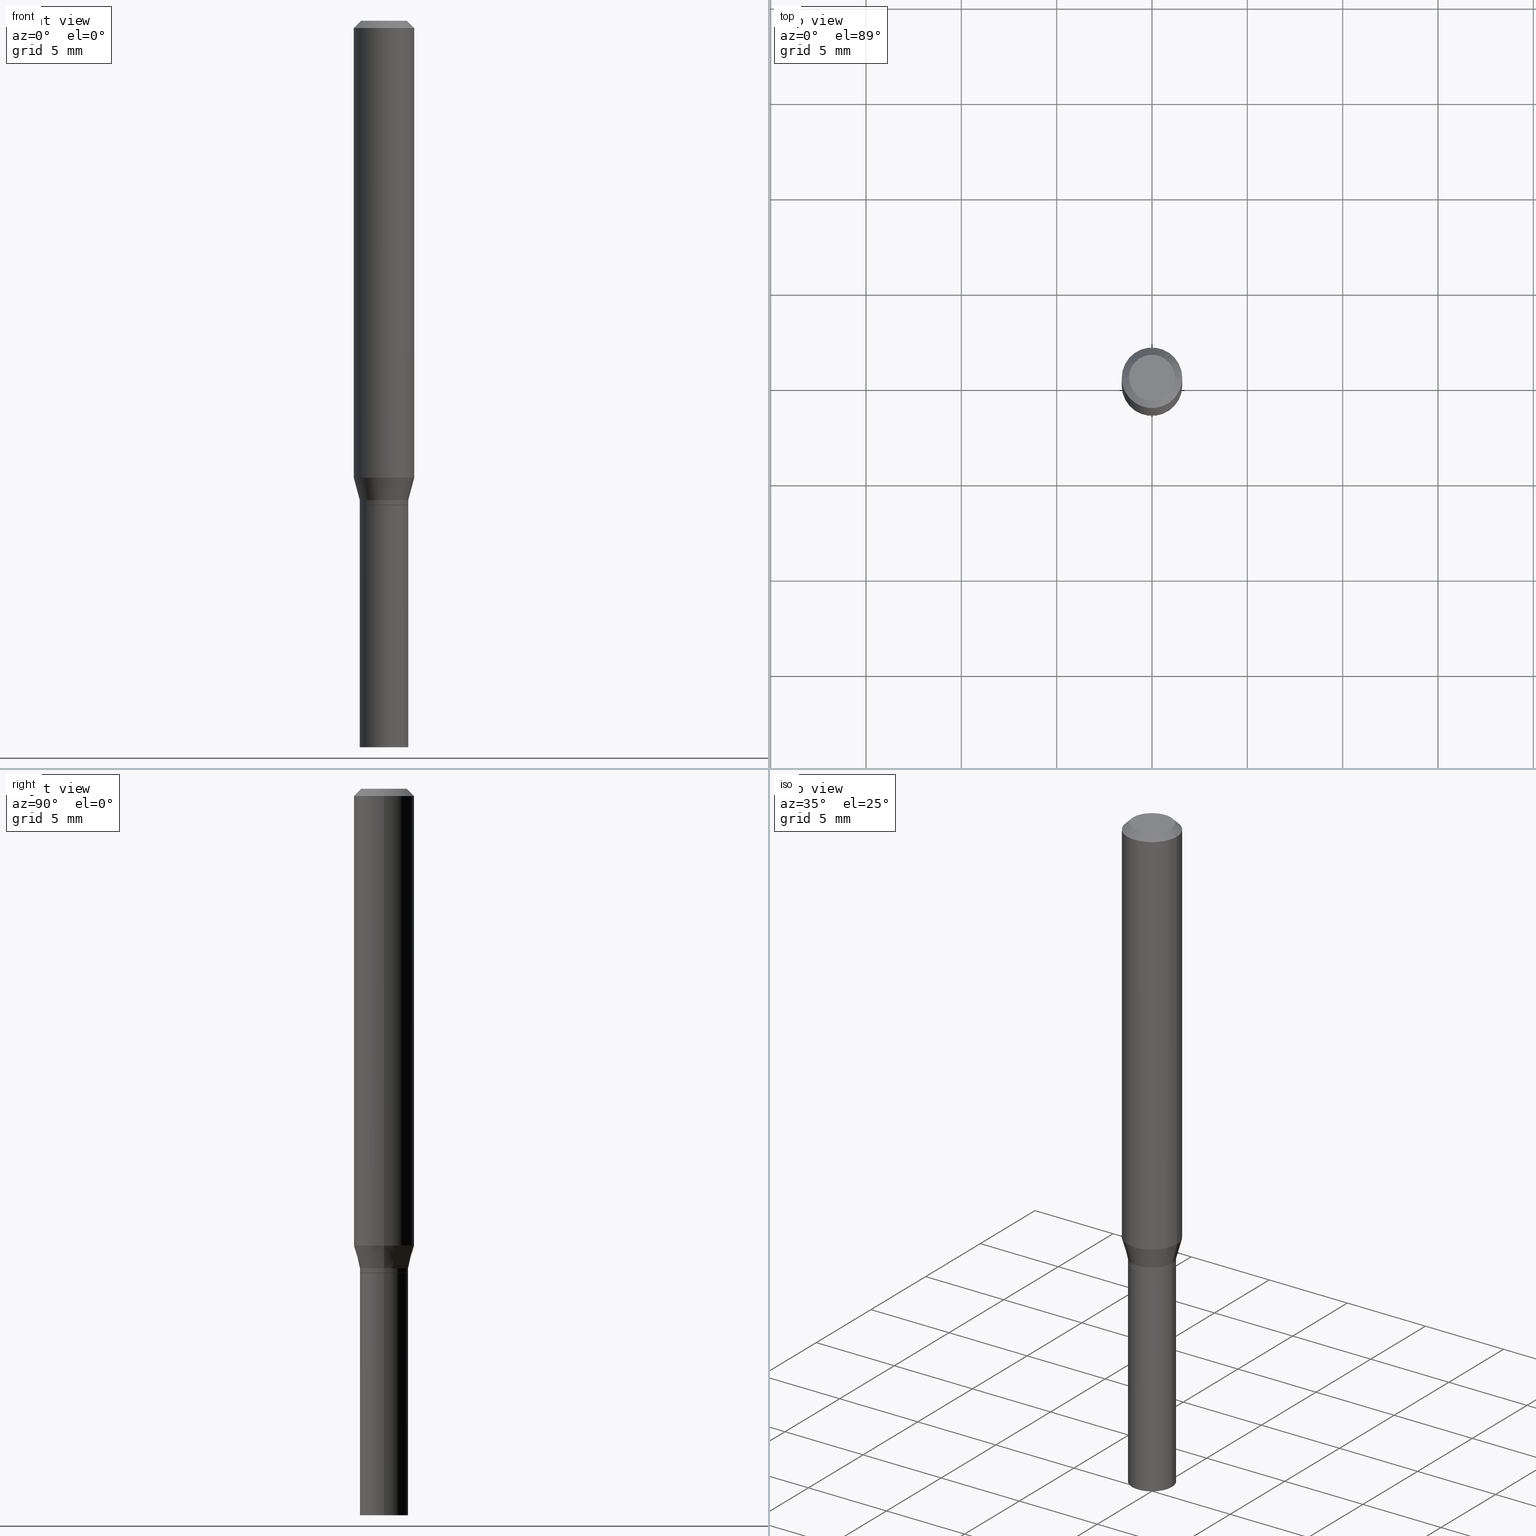
[diagram: canonical four-view strip — front | top / right | iso, engineering-drawing reading convention]
A machine part, canonical four-view strip (front | top / right | iso — engineering-drawing reading convention). The complete STEP part file that produces these views, byte-faithful:
ISO-10303-21;
HEADER;
FILE_DESCRIPTION (( 'STEP AP203' ),
    '1' );
FILE_NAME ('02663.STEP',
    '2024-03-18T21:11:18',
    ( '' ),
    ( '' ),
    'SwSTEP 2.0',
    'SolidWorks 2023',
    '' );
FILE_SCHEMA (( 'CONFIG_CONTROL_DESIGN' ));
ENDSEC;

DATA;
#1 = ADVANCED_FACE ( 'NONE', ( #44 ), #55, .F. ) ;
#2 = ORIENTED_EDGE ( 'NONE', *, *, #360, .F. ) ;
#3 = DIRECTION ( 'NONE',  ( -2.445468806185136597E-29, 3.491481338843145583E-15, 1.000000000000000000 ) ) ;
#4 = FACE_OUTER_BOUND ( 'NONE', #430, .T. ) ;
#5 = CARTESIAN_POINT ( 'NONE',  ( -0.04749999999999999362, 3.578768372314211985E-16, 8.618106228653636715E-17 ) ) ;
#6 = ADVANCED_FACE ( 'NONE', ( #466 ), #49, .T. ) ;
#7 = ORIENTED_EDGE ( 'NONE', *, *, #316, .F. ) ;
#8 = ORIENTED_EDGE ( 'NONE', *, *, #178, .T. ) ;
#9 = VECTOR ( 'NONE', #407, 39.37007874015748854 ) ;
#10 = PERSON_AND_ORGANIZATION ( #325, #126 ) ;
#11 = CARTESIAN_POINT ( 'NONE',  ( -0.05000000000000006523, -3.101295157574663525E-15, -0.9900000000000001021 ) ) ;
#12 = COORDINATED_UNIVERSAL_TIME_OFFSET ( 5, 0, .BEHIND. ) ;
#13 = PERSON_AND_ORGANIZATION_ROLE ( 'classification_officer' ) ;
#14 = AXIS2_PLACEMENT_3D ( 'NONE', #424, #246, #382 ) ;
#15 = CARTESIAN_POINT ( 'NONE',  ( 0.06250000000000000000, -4.888073874380388472E-16, -0.01499999999999999944 ) ) ;
#16 = FACE_OUTER_BOUND ( 'NONE', #65, .T. ) ;
#17 = EDGE_LOOP ( 'NONE', ( #24, #102, #369, #82 ) ) ;
#18 = DIRECTION ( 'NONE',  ( 1.000000000000000000, -6.982962677686265133E-15, 0.000000000000000000 ) ) ;
#19 = CARTESIAN_POINT ( 'NONE',  ( 0.05000000000000006523, -3.805714659339028452E-15, -0.9900000000000001021 ) ) ;
#20 = ORIENTED_EDGE ( 'NONE', *, *, #425, .T. ) ;
#21 = AXIS2_PLACEMENT_3D ( 'NONE', #34, #3, #441 ) ;
#22 = AXIS2_PLACEMENT_3D ( 'NONE', #26, #464, #147 ) ;
#23 = DIRECTION ( 'NONE',  ( 2.445468806185136597E-29, -3.491481338843145583E-15, -1.000000000000000000 ) ) ;
#24 = ORIENTED_EDGE ( 'NONE', *, *, #198, .F. ) ;
#25 = CARTESIAN_POINT ( 'NONE',  ( 2.444246071782044356E-29, -3.489735598173724079E-15, -0.9995000000000000551 ) ) ;
#26 = CARTESIAN_POINT ( 'NONE',  ( 3.668203209277705088E-31, -5.237222008264718399E-17, -0.01499999999999999944 ) ) ;
#27 = DIRECTION ( 'NONE',  ( 1.000000000000000000, -6.982962677686265133E-15, 0.000000000000000000 ) ) ;
#28 = DIRECTION ( 'NONE',  ( 1.000000000000000000, -6.982962677686267499E-15, 4.876176775795936353E-29 ) ) ;
#29 = ADVANCED_FACE ( 'NONE', ( #122 ), #379, .T. ) ;
#30 = CIRCLE ( 'NONE', #114, 0.05000000000000006523 ) ;
#31 = DIRECTION ( 'NONE',  ( -1.000000000000000000, 6.982962677686266711E-15, 0.000000000000000000 ) ) ;
#32 = CARTESIAN_POINT ( 'NONE',  ( 0.05000000000000000278, -5.586370142149032301E-15, -1.500000000000000222 ) ) ;
#33 = CARTESIAN_POINT ( 'NONE',  ( 0.05000000000000000278, -3.840629472727459313E-15, -1.000000000000000222 ) ) ;
#34 = CARTESIAN_POINT ( 'NONE',  ( 2.445468806185136877E-29, -3.491481338843145977E-15, -1.000000000000000222 ) ) ;
#35 = EDGE_CURVE ( 'NONE', #201, #61, #357, .T. ) ;
#36 = ADVANCED_BREP_SHAPE_REPRESENTATION ( '02663', ( #317, #286, #175 ), #67 ) ;
#37 = CLOSED_SHELL ( 'NONE', ( #442, #338, #344, #372, #416, #436, #78, #6, #84, #244, #29, #328 ) ) ;
#38 = CARTESIAN_POINT ( 'NONE',  ( 0.04950000000000000233, -3.837137991388616305E-15, -1.000000000000000222 ) ) ;
#39 = CIRCLE ( 'NONE', #358, 0.06250000000000000000 ) ;
#40 = APPROVAL_PERSON_ORGANIZATION ( #366, #290, #169 ) ;
#41 = DIRECTION ( 'NONE',  ( -2.445468806185136597E-29, 3.491481338843145583E-15, 1.000000000000000000 ) ) ;
#42 = APPROVAL_STATUS ( 'not_yet_approved' ) ;
#43 = PLANE ( 'NONE',  #315 ) ;
#44 = FACE_OUTER_BOUND ( 'NONE', #238, .T. ) ;
#45 = VERTEX_POINT ( 'NONE', #5 ) ;
#46 = EDGE_CURVE ( 'NONE', #351, #363, #187, .T. ) ;
#47 = VERTEX_POINT ( 'NONE', #32 ) ;
#48 = ORIENTED_EDGE ( 'NONE', *, *, #327, .F. ) ;
#49 = CONICAL_SURFACE ( 'NONE', #261, 0.06250000000000000000, 0.7853981633974456145 ) ;
#50 = CIRCLE ( 'NONE', #66, 0.05000000000000006523 ) ;
#51 = CARTESIAN_POINT ( 'NONE',  ( 3.668203209277705088E-31, -5.237222008264718399E-17, -0.01499999999999999944 ) ) ;
#52 = AXIS2_PLACEMENT_3D ( 'NONE', #400, #80, #234 ) ;
#53 = DIRECTION ( 'NONE',  ( -2.438088387897960049E-29, 3.491481338843145188E-15, 1.000000000000000000 ) ) ;
#54 = APPROVAL_DATE_TIME ( #285, #308 ) ;
#55 = PLANE ( 'NONE',  #172 ) ;
#56 = EDGE_CURVE ( 'NONE', #253, #426, #310, .T. ) ;
#57 = ADVANCED_FACE ( 'NONE', ( #4 ), #117, .T. ) ;
#58 = DIRECTION ( 'NONE',  ( -2.445468806185136877E-29, 3.491481338843145188E-15, 1.000000000000000000 ) ) ;
#59 = FACE_OUTER_BOUND ( 'NONE', #69, .T. ) ;
#60 = PERSON_AND_ORGANIZATION ( #325, #126 ) ;
#61 = VERTEX_POINT ( 'NONE', #231 ) ;
#62 = APPROVAL_ROLE ( '' ) ;
#63 = ORIENTED_EDGE ( 'NONE', *, *, #180, .T. ) ;
#64 = DIRECTION ( 'NONE',  ( -2.445468806185136597E-29, 3.491481338843145583E-15, 1.000000000000000000 ) ) ;
#65 = EDGE_LOOP ( 'NONE', ( #176, #463, #205, #423 ) ) ;
#66 = AXIS2_PLACEMENT_3D ( 'NONE', #257, #267, #437 ) ;
#67 =( GEOMETRIC_REPRESENTATION_CONTEXT ( 3 ) GLOBAL_UNCERTAINTY_ASSIGNED_CONTEXT ( ( #116 ) ) GLOBAL_UNIT_ASSIGNED_CONTEXT ( ( #130, #274, #167 ) ) REPRESENTATION_CONTEXT ( 'NONE', 'WORKASPACE' ) );
#68 = EDGE_LOOP ( 'NONE', ( #282, #219, #213, #96 ) ) ;
#69 = EDGE_LOOP ( 'NONE', ( #353, #185, #106, #252 ) ) ;
#70 = VERTEX_POINT ( 'NONE', #191 ) ;
#71 = EDGE_CURVE ( 'NONE', #61, #70, #330, .T. ) ;
#72 = LINE ( 'NONE', #226, #139 ) ;
#73 = CC_DESIGN_PERSON_AND_ORGANIZATION_ASSIGNMENT ( #336, #239, ( #443 ) ) ;
#74 = VECTOR ( 'NONE', #94, 39.37007874015748143 ) ;
#75 = ORIENTED_EDGE ( 'NONE', *, *, #349, .F. ) ;
#76 = EDGE_CURVE ( 'NONE', #387, #229, #370, .T. ) ;
#77 = CARTESIAN_POINT ( 'NONE',  ( 3.491481338843377409E-16, 0.04999999999999651251, -1.000000000000000222 ) ) ;
#78 = ADVANCED_FACE ( 'NONE', ( #302 ), #153, .T. ) ;
#79 = DIRECTION ( 'NONE',  ( -1.000000000000000000, 6.982962677686265922E-15, -4.876176775795935793E-29 ) ) ;
#80 = DIRECTION ( 'NONE',  ( -2.445468806185136597E-29, 3.491481338843145583E-15, 1.000000000000000000 ) ) ;
#81 = CARTESIAN_POINT ( 'NONE',  ( 2.306931445210689436E-29, -3.293686703576700358E-15, -0.9433493649053894536 ) ) ;
#82 = ORIENTED_EDGE ( 'NONE', *, *, #192, .F. ) ;
#83 = DIRECTION ( 'NONE',  ( -2.445468806185136597E-29, 3.491481338843145583E-15, 1.000000000000000000 ) ) ;
#84 = ADVANCED_FACE ( 'NONE', ( #393 ), #121, .F. ) ;
#85 = DIRECTION ( 'NONE',  ( -2.445468806185136597E-29, 3.491481338843145583E-15, 1.000000000000000000 ) ) ;
#86 = CALENDAR_DATE ( 2024, 18, 3 ) ;
#87 = VECTOR ( 'NONE', #152, 39.37007874015748143 ) ;
#88 = EDGE_CURVE ( 'NONE', #351, #350, #50, .T. ) ;
#89 = CARTESIAN_POINT ( 'NONE',  ( 2.421014118123285332E-29, -3.456566525454714328E-15, -0.9900000000000001021 ) ) ;
#90 = CALENDAR_DATE ( 2024, 18, 3 ) ;
#91 = CARTESIAN_POINT ( 'NONE',  ( 2.445468806185136877E-29, -3.491481338843145977E-15, -1.000000000000000222 ) ) ;
#92 = APPROVAL_ROLE ( '' ) ;
#93 = CARTESIAN_POINT ( 'NONE',  ( -2.107530995056288845E-45, 3.008995707351289501E-31, 8.618106228653878303E-17 ) ) ;
#94 = DIRECTION ( 'NONE',  ( -0.7071067811865656694, 7.493145998870420424E-15, 0.7071067811865294761 ) ) ;
#95 = CIRCLE ( 'NONE', #409, 0.06250000000000000000 ) ;
#96 = ORIENTED_EDGE ( 'NONE', *, *, #220, .F. ) ;
#97 = ORIENTED_EDGE ( 'NONE', *, *, #446, .T. ) ;
#98 = ADVANCED_FACE ( 'NONE', ( #112 ), #262, .T. ) ;
#99 = ORIENTED_EDGE ( 'NONE', *, *, #56, .F. ) ;
#100 = DIRECTION ( 'NONE',  ( -2.445468806185136877E-29, 3.491481338843145188E-15, 1.000000000000000000 ) ) ;
#101 = ORIENTED_EDGE ( 'NONE', *, *, #212, .T. ) ;
#102 = ORIENTED_EDGE ( 'NONE', *, *, #462, .T. ) ;
#103 = VECTOR ( 'NONE', #465, 39.37007874015748143 ) ;
#104 = VECTOR ( 'NONE', #58, 39.37007874015748143 ) ;
#105 = ORIENTED_EDGE ( 'NONE', *, *, #128, .F. ) ;
#106 = ORIENTED_EDGE ( 'NONE', *, *, #128, .T. ) ;
#107 = CARTESIAN_POINT ( 'NONE',  ( -0.06250000000000000000, 4.440892098500626162E-16, -3.074334431409316114E-30 ) ) ;
#108 = ORIENTED_EDGE ( 'NONE', *, *, #401, .T. ) ;
#109 = CARTESIAN_POINT ( 'NONE',  ( 0.06250000000000000000, -4.811533449433679005E-16, -0.01499999999999999944 ) ) ;
#110 = DIRECTION ( 'NONE',  ( -1.000000000000000000, 6.982962677686266711E-15, 0.000000000000000000 ) ) ;
#111 =( LENGTH_UNIT ( ) NAMED_UNIT ( * ) SI_UNIT ( $, .METRE. ) );
#112 = FACE_OUTER_BOUND ( 'NONE', #240, .T. ) ;
#113 = AXIS2_PLACEMENT_3D ( 'NONE', #227, #194, #332 ) ;
#114 = AXIS2_PLACEMENT_3D ( 'NONE', #89, #241, #375 ) ;
#115 = CARTESIAN_POINT ( 'NONE',  ( -0.05000000000000006523, -2.975446325650650633E-15, -0.9900000000000001021 ) ) ;
#116 = UNCERTAINTY_MEASURE_WITH_UNIT (LENGTH_MEASURE( 1.000000000000000082E-05 ), #130, 'distance_accuracy_value', 'NONE');
#117 = CYLINDRICAL_SURFACE ( 'NONE', #321, 0.05000000000000000278 ) ;
#118 = DIRECTION ( 'NONE',  ( 1.000000000000000000, -6.982962677686266711E-15, 4.876176775795935793E-29 ) ) ;
#119 = EDGE_LOOP ( 'NONE', ( #150, #63 ) ) ;
#120 = DATE_AND_TIME ( #86, #218 ) ;
#121 = PLANE ( 'NONE',  #333 ) ;
#122 = FACE_OUTER_BOUND ( 'NONE', #142, .T. ) ;
#123 = APPLICATION_PROTOCOL_DEFINITION ( 'international standard', 'config_control_design', 1994, #154 ) ;
#124 = DIRECTION ( 'NONE',  ( 1.000000000000000000, -6.982962677686264344E-15, 0.000000000000000000 ) ) ;
#125 = CONICAL_SURFACE ( 'NONE', #183, 0.05000000000000006523, 0.2617993877991499629 ) ;
#126 = ORGANIZATION ( 'UNSPECIFIED', 'UNSPECIFIED', '' ) ;
#127 = CARTESIAN_POINT ( 'NONE',  ( -2.107530995056288845E-45, 3.008995707351289501E-31, 8.618106228653878303E-17 ) ) ;
#128 = EDGE_CURVE ( 'NONE', #426, #70, #135, .T. ) ;
#129 = APPLICATION_CONTEXT ( 'configuration controlled 3d designs of mechanical parts and assemblies' ) ;
#130 =( CONVERSION_BASED_UNIT ( 'INCH', #335 ) LENGTH_UNIT ( ) NAMED_UNIT ( #378 ) );
#131 = PERSON_AND_ORGANIZATION_ROLE ( 'design_owner' ) ;
#132 = EDGE_LOOP ( 'NONE', ( #99, #404, #20, #432 ) ) ;
#133 = DIRECTION ( 'NONE',  ( -2.445468806185136597E-29, 3.491481338843145583E-15, 1.000000000000000000 ) ) ;
#134 = LINE ( 'NONE', #313, #189 ) ;
#135 = CIRCLE ( 'NONE', #22, 0.06250000000000000000 ) ;
#136 = DIRECTION ( 'NONE',  ( 1.000000000000000000, -6.982962677686264344E-15, 0.000000000000000000 ) ) ;
#137 = PERSON_AND_ORGANIZATION ( #325, #126 ) ;
#138 = CARTESIAN_POINT ( 'NONE',  ( 3.668203209277705088E-31, -5.237222008264718399E-17, -0.01499999999999999944 ) ) ;
#139 = VECTOR ( 'NONE', #171, 39.37007874015748143 ) ;
#140 = APPROVAL_PERSON_ORGANIZATION ( #137, #308, #92 ) ;
#141 = CARTESIAN_POINT ( 'NONE',  ( 0.000000000000000000, 0.000000000000000000, 0.000000000000000000 ) ) ;
#142 = EDGE_LOOP ( 'NONE', ( #202, #101, #451, #331 ) ) ;
#143 = EDGE_CURVE ( 'NONE', #387, #350, #72, .T. ) ;
#144 = ORIENTED_EDGE ( 'NONE', *, *, #314, .T. ) ;
#145 = CARTESIAN_POINT ( 'NONE',  ( -0.04950000000000000233, -3.139762684641896467E-15, -1.000000000000000222 ) ) ;
#146 = CC_DESIGN_PERSON_AND_ORGANIZATION_ASSIGNMENT ( #376, #417, ( #371 ) ) ;
#147 = DIRECTION ( 'NONE',  ( 1.000000000000000000, -6.982962677686266711E-15, 0.000000000000000000 ) ) ;
#148 = AXIS2_PLACEMENT_3D ( 'NONE', #77, #230, #361 ) ;
#149 = CC_DESIGN_SECURITY_CLASSIFICATION ( #184, ( #371 ) ) ;
#150 = ORIENTED_EDGE ( 'NONE', *, *, #232, .T. ) ;
#151 = DIRECTION ( 'NONE',  ( -2.445468806185136877E-29, 3.491481338843145188E-15, 1.000000000000000000 ) ) ;
#152 = DIRECTION ( 'NONE',  ( -2.445468806185136877E-29, 3.491481338843145188E-15, 1.000000000000000000 ) ) ;
#153 = CYLINDRICAL_SURFACE ( 'NONE', #450, 0.06250000000000000000 ) ;
#154 = APPLICATION_CONTEXT ( 'configuration controlled 3d designs of mechanical parts and assemblies' ) ;
#155 = CONICAL_SURFACE ( 'NONE', #459, 0.05000000000000006523, 0.2617993877991499629 ) ;
#156 = DIRECTION ( 'NONE',  ( 1.000000000000000000, -6.982962677686274599E-15, 0.000000000000000000 ) ) ;
#157 = ORIENTED_EDGE ( 'NONE', *, *, #232, .F. ) ;
#158 = DIRECTION ( 'NONE',  ( 1.000000000000000000, -6.982962677686264344E-15, 0.000000000000000000 ) ) ;
#159 = EDGE_CURVE ( 'NONE', #70, #426, #95, .T. ) ;
#160 = APPROVAL ( #461, 'UNSPECIFIED' ) ;
#161 = AXIS2_PLACEMENT_3D ( 'NONE', #368, #337, #236 ) ;
#162 = CC_DESIGN_APPROVAL ( #308, ( #371 ) ) ;
#163 = CARTESIAN_POINT ( 'NONE',  ( 0.000000000000000000, 0.000000000000000000, 0.000000000000000000 ) ) ;
#164 = DIRECTION ( 'NONE',  ( 1.000000000000000000, -6.982962677686267499E-15, 4.884662768193073002E-29 ) ) ;
#165 = CARTESIAN_POINT ( 'NONE',  ( 3.576687321579069994E-29, -5.368277968210015545E-15, -1.500000000000000222 ) ) ;
#166 = ORIENTED_EDGE ( 'NONE', *, *, #360, .T. ) ;
#167 =( NAMED_UNIT ( * ) SI_UNIT ( $, .STERADIAN. ) SOLID_ANGLE_UNIT ( ) );
#168 = CARTESIAN_POINT ( 'NONE',  ( 0.05000000000000006523, -3.805714659339028452E-15, -0.9900000000000001021 ) ) ;
#169 = APPROVAL_ROLE ( '' ) ;
#170 = CALENDAR_DATE ( 2024, 18, 3 ) ;
#171 = DIRECTION ( 'NONE',  ( 0.7071067811865656694, -2.468850131082446387E-15, 0.7071067811865294761 ) ) ;
#172 = AXIS2_PLACEMENT_3D ( 'NONE', #165, #53, #343 ) ;
#173 = AXIS2_PLACEMENT_3D ( 'NONE', #127, #206, #164 ) ;
#174 = COORDINATED_UNIVERSAL_TIME_OFFSET ( 5, 0, .BEHIND. ) ;
#175 = AXIS2_PLACEMENT_3D ( 'NONE', #163, #233, #373 ) ;
#176 = ORIENTED_EDGE ( 'NONE', *, *, #46, .F. ) ;
#177 = FACE_OUTER_BOUND ( 'NONE', #289, .T. ) ;
#178 = EDGE_CURVE ( 'NONE', #253, #45, #204, .T. ) ;
#179 = DESIGN_CONTEXT ( 'detailed design', #154, 'design' ) ;
#180 = EDGE_CURVE ( 'NONE', #454, #399, #339, .T. ) ;
#181 = CARTESIAN_POINT ( 'NONE',  ( -0.05000000000000000278, -4.009080305673882063E-15, -1.500000000000000222 ) ) ;
#182 = DATE_TIME_ROLE ( 'classification_date' ) ;
#183 = AXIS2_PLACEMENT_3D ( 'NONE', #413, #283, #18 ) ;
#184 = SECURITY_CLASSIFICATION ( '', '', #383 ) ;
#185 = ORIENTED_EDGE ( 'NONE', *, *, #56, .T. ) ;
#186 = ORIENTED_EDGE ( 'NONE', *, *, #314, .F. ) ;
#187 = LINE ( 'NONE', #359, #103 ) ;
#188 = AXIS2_PLACEMENT_3D ( 'NONE', #276, #85, #124 ) ;
#189 = VECTOR ( 'NONE', #319, 39.37007874015748854 ) ;
#190 = LOCAL_TIME ( 17, 11, 18.00000000000000000, #414 ) ;
#191 = CARTESIAN_POINT ( 'NONE',  ( -0.06250000000000000000, -1.228940251979611102E-15, -0.01499999999999999944 ) ) ;
#192 = EDGE_CURVE ( 'NONE', #61, #201, #39, .T. ) ;
#193 = CARTESIAN_POINT ( 'NONE',  ( -0.05000000000000000278, 3.552713678800501127E-16, -2.459467545127453311E-30 ) ) ;
#194 = DIRECTION ( 'NONE',  ( -2.445468806185136597E-29, 3.491481338843145583E-15, 1.000000000000000000 ) ) ;
#195 = ORIENTED_EDGE ( 'NONE', *, *, #212, .F. ) ;
#196 = CIRCLE ( 'NONE', #161, 0.04950000000000000233 ) ;
#197 = CARTESIAN_POINT ( 'NONE',  ( 3.668203209277704895E-29, -5.237222008264718177E-15, -1.500000000000000222 ) ) ;
#198 = EDGE_CURVE ( 'NONE', #363, #61, #272, .T. ) ;
#199 = APPROVAL_DATE_TIME ( #120, #290 ) ;
#200 = PRODUCT ( '02663', '02663', '', ( #235 ) ) ;
#201 = VERTEX_POINT ( 'NONE', #405 ) ;
#202 = ORIENTED_EDGE ( 'NONE', *, *, #300, .F. ) ;
#203 = CARTESIAN_POINT ( 'NONE',  ( 2.445468806185136877E-29, -3.491481338843145977E-15, -1.000000000000000222 ) ) ;
#204 = CIRCLE ( 'NONE', #173, 0.04749999999999999362 ) ;
#205 = ORIENTED_EDGE ( 'NONE', *, *, #327, .T. ) ;
#206 = DIRECTION ( 'NONE',  ( -2.445468806185136597E-29, 3.491481338843145583E-15, 1.000000000000000000 ) ) ;
#207 = ORIENTED_EDGE ( 'NONE', *, *, #280, .T. ) ;
#208 = PERSON_AND_ORGANIZATION_ROLE ( 'creator' ) ;
#209 = ORIENTED_EDGE ( 'NONE', *, *, #300, .T. ) ;
#210 = CARTESIAN_POINT ( 'NONE',  ( 0.05000000000000006523, -3.491481338843137793E-16, 2.438088387897970699E-30 ) ) ;
#211 = VECTOR ( 'NONE', #100, 39.37007874015748143 ) ;
#212 = EDGE_CURVE ( 'NONE', #229, #387, #196, .T. ) ;
#213 = ORIENTED_EDGE ( 'NONE', *, *, #35, .F. ) ;
#214 = ORIENTED_EDGE ( 'NONE', *, *, #401, .F. ) ;
#215 = DATE_AND_TIME ( #457, #365 ) ;
#216 = AXIS2_PLACEMENT_3D ( 'NONE', #91, #41, #158 ) ;
#217 = CARTESIAN_POINT ( 'NONE',  ( 2.445468806185136877E-29, -3.491481338843145977E-15, -1.000000000000000222 ) ) ;
#218 = LOCAL_TIME ( 17, 11, 18.00000000000000000, #408 ) ;
#219 = ORIENTED_EDGE ( 'NONE', *, *, #198, .T. ) ;
#220 = EDGE_CURVE ( 'NONE', #291, #201, #279, .T. ) ;
#221 = ORIENTED_EDGE ( 'NONE', *, *, #71, .F. ) ;
#222 = DIRECTION ( 'NONE',  ( -2.445468806185136597E-29, 3.491481338843145583E-15, 1.000000000000000000 ) ) ;
#223 = PERSON_AND_ORGANIZATION ( #325, #126 ) ;
#224 = DIRECTION ( 'NONE',  ( 2.445468806185136597E-29, -3.491481338843145583E-15, -1.000000000000000000 ) ) ;
#225 = FACE_OUTER_BOUND ( 'NONE', #68, .T. ) ;
#226 = CARTESIAN_POINT ( 'NONE',  ( 0.04950000000000000233, -3.837137991388616305E-15, -1.000000000000000222 ) ) ;
#227 = CARTESIAN_POINT ( 'NONE',  ( 2.306931445210689436E-29, -3.293686703576700358E-15, -0.9433493649053894536 ) ) ;
#228 = AXIS2_PLACEMENT_3D ( 'NONE', #197, #334, #156 ) ;
#229 = VERTEX_POINT ( 'NONE', #412 ) ;
#230 = DIRECTION ( 'NONE',  ( 2.438088387897960049E-29, -3.491481338843145188E-15, -1.000000000000000000 ) ) ;
#231 = CARTESIAN_POINT ( 'NONE',  ( -0.06250000000000000000, -2.849597493726637742E-15, -0.9433493649053894536 ) ) ;
#232 = EDGE_CURVE ( 'NONE', #399, #454, #263, .T. ) ;
#233 = DIRECTION ( 'NONE',  ( 0.000000000000000000, 0.000000000000000000, 1.000000000000000000 ) ) ;
#234 = DIRECTION ( 'NONE',  ( 1.000000000000000000, -6.982962677686267499E-15, 4.876176775795936353E-29 ) ) ;
#235 = MECHANICAL_CONTEXT ( 'NONE', #129, 'mechanical' ) ;
#236 = DIRECTION ( 'NONE',  ( 1.000000000000000000, -6.982962677686264344E-15, 0.000000000000000000 ) ) ;
#237 = AXIS2_PLACEMENT_3D ( 'NONE', #394, #440, #118 ) ;
#238 = EDGE_LOOP ( 'NONE', ( #340, #214 ) ) ;
#239 = PERSON_AND_ORGANIZATION_ROLE ( 'creator' ) ;
#240 = EDGE_LOOP ( 'NONE', ( #410, #270, #157, #186 ) ) ;
#241 = DIRECTION ( 'NONE',  ( -2.445468806185136597E-29, 3.491481338843145583E-15, 1.000000000000000000 ) ) ;
#242 = PERSON_AND_ORGANIZATION ( #325, #126 ) ;
#243 = CARTESIAN_POINT ( 'NONE',  ( 0.000000000000000000, 0.000000000000000000, 0.000000000000000000 ) ) ;
#244 = ADVANCED_FACE ( 'NONE', ( #367 ), #43, .F. ) ;
#245 = EDGE_CURVE ( 'NONE', #47, #273, #390, .T. ) ;
#246 = DIRECTION ( 'NONE',  ( -2.445468806185136597E-29, 3.491481338843145583E-15, 1.000000000000000000 ) ) ;
#247 = AXIS2_PLACEMENT_3D ( 'NONE', #93, #281, #381 ) ;
#248 = CC_DESIGN_APPROVAL ( #160, ( #184 ) ) ;
#249 = EDGE_LOOP ( 'NONE', ( #97, #8 ) ) ;
#250 = ORIENTED_EDGE ( 'NONE', *, *, #76, .F. ) ;
#251 = COORDINATED_UNIVERSAL_TIME_OFFSET ( 5, 0, .BEHIND. ) ;
#252 = ORIENTED_EDGE ( 'NONE', *, *, #425, .F. ) ;
#253 = VERTEX_POINT ( 'NONE', #415 ) ;
#254 = APPROVAL_DATE_TIME ( #294, #160 ) ;
#255 = DIRECTION ( 'NONE',  ( -2.438088387897960049E-29, 3.491481338843145188E-15, 1.000000000000000000 ) ) ;
#256 = CARTESIAN_POINT ( 'NONE',  ( -0.05000000000000006523, -3.134464230293674065E-15, -0.9995000000000000551 ) ) ;
#257 = CARTESIAN_POINT ( 'NONE',  ( 2.444246071782044356E-29, -3.489735598173724079E-15, -0.9995000000000000551 ) ) ;
#258 = ORIENTED_EDGE ( 'NONE', *, *, #280, .F. ) ;
#259 = DIRECTION ( 'NONE',  ( -2.445468806185136597E-29, 3.491481338843145583E-15, 1.000000000000000000 ) ) ;
#260 = CC_DESIGN_PERSON_AND_ORGANIZATION_ASSIGNMENT ( #10, #131, ( #200 ) ) ;
#261 = AXIS2_PLACEMENT_3D ( 'NONE', #295, #224, #110 ) ;
#262 = CYLINDRICAL_SURFACE ( 'NONE', #52, 0.05000000000000000278 ) ;
#263 = CIRCLE ( 'NONE', #216, 0.05000000000000000278 ) ;
#264 = FACE_OUTER_BOUND ( 'NONE', #119, .T. ) ;
#265 = EDGE_LOOP ( 'NONE', ( #320, #385, #105, #2 ) ) ;
#266 = ORIENTED_EDGE ( 'NONE', *, *, #192, .T. ) ;
#267 = DIRECTION ( 'NONE',  ( -2.445468806185136597E-29, 3.491481338843145583E-15, 1.000000000000000000 ) ) ;
#268 = CIRCLE ( 'NONE', #228, 0.05000000000000000278 ) ;
#269 = APPROVAL_PERSON_ORGANIZATION ( #223, #160, #62 ) ;
#270 = ORIENTED_EDGE ( 'NONE', *, *, #349, .T. ) ;
#271 = PRODUCT_DEFINITION_SHAPE ( 'NONE', 'NONE',  #443 ) ;
#272 = LINE ( 'NONE', #11, #395 ) ;
#273 = VERTEX_POINT ( 'NONE', #181 ) ;
#274 =( NAMED_UNIT ( * ) PLANE_ANGLE_UNIT ( ) SI_UNIT ( $, .RADIAN. ) );
#275 = DIRECTION ( 'NONE',  ( -0.2588190451025212391, 5.211531920934549464E-15, 0.9659258262890679791 ) ) ;
#276 = CARTESIAN_POINT ( 'NONE',  ( 2.445468806185136877E-29, -3.491481338843145977E-15, -1.000000000000000222 ) ) ;
#277 = ORIENTED_EDGE ( 'NONE', *, *, #76, .T. ) ;
#278 = DIRECTION ( 'NONE',  ( 1.000000000000000000, -6.982962677686266711E-15, 4.876176775795935232E-29 ) ) ;
#279 = LINE ( 'NONE', #168, #9 ) ;
#280 = EDGE_CURVE ( 'NONE', #350, #351, #329, .T. ) ;
#281 = DIRECTION ( 'NONE',  ( -2.445468806185136597E-29, 3.491481338843145583E-15, 1.000000000000000000 ) ) ;
#282 = ORIENTED_EDGE ( 'NONE', *, *, #316, .T. ) ;
#283 = DIRECTION ( 'NONE',  ( -2.445468806185136597E-29, 3.491481338843145583E-15, 1.000000000000000000 ) ) ;
#284 = LINE ( 'NONE', #145, #74 ) ;
#285 = DATE_AND_TIME ( #170, #420 ) ;
#286 = MANIFOLD_SOLID_BREP ( 'Body-Move/Copy2[2]', #37 ) ;
#287 = DIRECTION ( 'NONE',  ( 1.000000000000000000, -6.982962677686265133E-15, 0.000000000000000000 ) ) ;
#288 = CONICAL_SURFACE ( 'NONE', #14, 0.04950000000000000233, 0.7853981633974739252 ) ;
#289 = EDGE_LOOP ( 'NONE', ( #277, #209, #258, #389 ) ) ;
#290 = APPROVAL ( #42, 'UNSPECIFIED' ) ;
#291 = VERTEX_POINT ( 'NONE', #19 ) ;
#292 = LINE ( 'NONE', #210, #211 ) ;
#293 = DIRECTION ( 'NONE',  ( 1.000000000000000000, -6.982962677686274599E-15, 0.000000000000000000 ) ) ;
#294 = DATE_AND_TIME ( #324, #396 ) ;
#295 = CARTESIAN_POINT ( 'NONE',  ( 3.668203209277705088E-31, -5.237222008264718399E-17, -0.01499999999999999944 ) ) ;
#296 = ORIENTED_EDGE ( 'NONE', *, *, #159, .F. ) ;
#297 = DIRECTION ( 'NONE',  ( -2.445468806185136597E-29, 3.491481338843145583E-15, 1.000000000000000000 ) ) ;
#298 = AXIS2_PLACEMENT_3D ( 'NONE', #427, #64, #422 ) ;
#299 = CARTESIAN_POINT ( 'NONE',  ( 3.316907271900976096E-16, 0.04749999999999999362, -1.227548324517800049E-16 ) ) ;
#300 = EDGE_CURVE ( 'NONE', #229, #351, #284, .T. ) ;
#301 = DIRECTION ( 'NONE',  ( -2.445468806185136597E-29, 3.491481338843145583E-15, 1.000000000000000000 ) ) ;
#302 = FACE_OUTER_BOUND ( 'NONE', #352, .T. ) ;
#303 = CARTESIAN_POINT ( 'NONE',  ( 0.05000000000000006523, -3.838883732058037809E-15, -0.9995000000000000551 ) ) ;
#304 = DIRECTION ( 'NONE',  ( 1.000000000000000000, -6.982962677686266711E-15, 4.876176775795935793E-29 ) ) ;
#305 = LINE ( 'NONE', #193, #87 ) ;
#306 = DIRECTION ( 'NONE',  ( 0.7071067811865454633, -7.319954787623246579E-15, -0.7071067811865493491 ) ) ;
#307 = AXIS2_PLACEMENT_3D ( 'NONE', #377, #222, #293 ) ;
#308 = APPROVAL ( #453, 'UNSPECIFIED' ) ;
#309 = DIRECTION ( 'NONE',  ( -2.445468806185136877E-29, 3.491481338843145188E-15, 1.000000000000000000 ) ) ;
#310 = LINE ( 'NONE', #109, #429 ) ;
#311 = VECTOR ( 'NONE', #309, 39.37007874015748143 ) ;
#312 = DIRECTION ( 'NONE',  ( -2.445468806185136597E-29, 3.491481338843145583E-15, 1.000000000000000000 ) ) ;
#313 = CARTESIAN_POINT ( 'NONE',  ( -0.06250000000000000000, 3.840629472727444916E-16, -0.01499999999999999944 ) ) ;
#314 = EDGE_CURVE ( 'NONE', #47, #399, #322, .T. ) ;
#315 = AXIS2_PLACEMENT_3D ( 'NONE', #217, #255, #347 ) ;
#316 = EDGE_CURVE ( 'NONE', #291, #363, #364, .T. ) ;
#317 = MANIFOLD_SOLID_BREP ( 'Body-Move/Copy2[1]', #388 ) ;
#318 = FACE_OUTER_BOUND ( 'NONE', #444, .T. ) ;
#319 = DIRECTION ( 'NONE',  ( -0.7071067811865454633, 2.468850131082235761E-15, -0.7071067811865493491 ) ) ;
#320 = ORIENTED_EDGE ( 'NONE', *, *, #35, .T. ) ;
#321 = AXIS2_PLACEMENT_3D ( 'NONE', #356, #259, #28 ) ;
#322 = LINE ( 'NONE', #456, #104 ) ;
#323 = CONICAL_SURFACE ( 'NONE', #346, 0.06250000000000000000, 0.7853981633974456145 ) ;
#324 = CALENDAR_DATE ( 2024, 18, 3 ) ;
#325 = PERSON ( 'UNSPECIFIED', 'UNSPECIFIED', 'UNSPECIFIED', ('UNSPECIFIED'), ('UNSPECIFIED'), ('UNSPECIFIED') ) ;
#326 = DIRECTION ( 'NONE',  ( 2.438088387897960049E-29, -3.491481338843145188E-15, -1.000000000000000000 ) ) ;
#327 = EDGE_CURVE ( 'NONE', #350, #291, #292, .T. ) ;
#328 = ADVANCED_FACE ( 'NONE', ( #16 ), #460, .T. ) ;
#329 = CIRCLE ( 'NONE', #419, 0.05000000000000006523 ) ;
#330 = LINE ( 'NONE', #107, #458 ) ;
#331 = ORIENTED_EDGE ( 'NONE', *, *, #88, .F. ) ;
#332 = DIRECTION ( 'NONE',  ( 1.000000000000000000, -6.982962677686262766E-15, 0.000000000000000000 ) ) ;
#333 = AXIS2_PLACEMENT_3D ( 'NONE', #299, #326, #79 ) ;
#334 = DIRECTION ( 'NONE',  ( -2.445468806185136597E-29, 3.491481338843145583E-15, 1.000000000000000000 ) ) ;
#335 = LENGTH_MEASURE_WITH_UNIT ( LENGTH_MEASURE( 0.02539999999999999897 ), #111 );
#336 = PERSON_AND_ORGANIZATION ( #325, #126 ) ;
#337 = DIRECTION ( 'NONE',  ( -2.445468806185136597E-29, 3.491481338843145583E-15, 1.000000000000000000 ) ) ;
#338 = ADVANCED_FACE ( 'NONE', ( #177 ), #288, .T. ) ;
#339 = CIRCLE ( 'NONE', #402, 0.05000000000000000278 ) ;
#340 = ORIENTED_EDGE ( 'NONE', *, *, #245, .F. ) ;
#341 = APPLICATION_PROTOCOL_DEFINITION ( 'international standard', 'config_control_design', 1994, #129 ) ;
#342 = DIRECTION ( 'NONE',  ( 1.000000000000000000, -6.982962677686262766E-15, 0.000000000000000000 ) ) ;
#343 = DIRECTION ( 'NONE',  ( 1.000000000000000000, -6.982962677686265922E-15, 4.876176775795935793E-29 ) ) ;
#344 = ADVANCED_FACE ( 'NONE', ( #59 ), #323, .T. ) ;
#345 = DATE_AND_TIME ( #90, #190 ) ;
#346 = AXIS2_PLACEMENT_3D ( 'NONE', #138, #23, #31 ) ;
#347 = DIRECTION ( 'NONE',  ( 1.000000000000000000, -6.982962677686265922E-15, 4.876176775795935793E-29 ) ) ;
#348 = DATE_TIME_ROLE ( 'creation_date' ) ;
#349 = EDGE_CURVE ( 'NONE', #273, #454, #305, .T. ) ;
#350 = VERTEX_POINT ( 'NONE', #303 ) ;
#351 = VERTEX_POINT ( 'NONE', #256 ) ;
#352 = EDGE_LOOP ( 'NONE', ( #221, #266, #166, #296 ) ) ;
#353 = ORIENTED_EDGE ( 'NONE', *, *, #178, .F. ) ;
#354 = CC_DESIGN_DATE_AND_TIME_ASSIGNMENT ( #215, #182, ( #184 ) ) ;
#355 = CARTESIAN_POINT ( 'NONE',  ( 2.421014118123285332E-29, -3.456566525454714328E-15, -0.9900000000000001021 ) ) ;
#356 = CARTESIAN_POINT ( 'NONE',  ( 0.000000000000000000, 0.000000000000000000, 0.000000000000000000 ) ) ;
#357 = CIRCLE ( 'NONE', #113, 0.06250000000000000000 ) ;
#358 = AXIS2_PLACEMENT_3D ( 'NONE', #81, #312, #342 ) ;
#359 = CARTESIAN_POINT ( 'NONE',  ( -0.05000000000000006523, 3.552713678800505564E-16, -2.459467545127455764E-30 ) ) ;
#360 = EDGE_CURVE ( 'NONE', #201, #426, #438, .T. ) ;
#361 = DIRECTION ( 'NONE',  ( -1.000000000000000000, 6.982962677686265922E-15, -4.876176775795935793E-29 ) ) ;
#362 = CARTESIAN_POINT ( 'NONE',  ( 0.06250000000000000000, -4.364351673553916694E-16, 3.047610484872459871E-30 ) ) ;
#363 = VERTEX_POINT ( 'NONE', #115 ) ;
#364 = CIRCLE ( 'NONE', #298, 0.05000000000000006523 ) ;
#365 = LOCAL_TIME ( 17, 11, 18.00000000000000000, #174 ) ;
#366 = PERSON_AND_ORGANIZATION ( #325, #126 ) ;
#367 = FACE_OUTER_BOUND ( 'NONE', #435, .T. ) ;
#368 = CARTESIAN_POINT ( 'NONE',  ( 2.445468806185136877E-29, -3.491481338843145977E-15, -1.000000000000000222 ) ) ;
#369 = ORIENTED_EDGE ( 'NONE', *, *, #220, .T. ) ;
#370 = CIRCLE ( 'NONE', #21, 0.04950000000000000233 ) ;
#371 = PRODUCT_DEFINITION_FORMATION_WITH_SPECIFIED_SOURCE ( 'ANY', '', #200, .NOT_KNOWN. ) ;
#372 = ADVANCED_FACE ( 'NONE', ( #392 ), #434, .T. ) ;
#373 = DIRECTION ( 'NONE',  ( 1.000000000000000000, 0.000000000000000000, 0.000000000000000000 ) ) ;
#374 = ADVANCED_FACE ( 'NONE', ( #264 ), #397, .F. ) ;
#375 = DIRECTION ( 'NONE',  ( 1.000000000000000000, -6.982962677686265133E-15, 0.000000000000000000 ) ) ;
#376 = PERSON_AND_ORGANIZATION ( #325, #126 ) ;
#377 = CARTESIAN_POINT ( 'NONE',  ( 3.668203209277704895E-29, -5.237222008264718177E-15, -1.500000000000000222 ) ) ;
#378 = DIMENSIONAL_EXPONENTS ( 1.000000000000000000, 0.000000000000000000, 0.000000000000000000, 0.000000000000000000, 0.000000000000000000, 0.000000000000000000, 0.000000000000000000 ) ;
#379 = CONICAL_SURFACE ( 'NONE', #188, 0.04950000000000000233, 0.7853981633974739252 ) ;
#380 = CC_DESIGN_APPROVAL ( #290, ( #443 ) ) ;
#381 = DIRECTION ( 'NONE',  ( 1.000000000000000000, -6.982962677686267499E-15, 4.884662768193073002E-29 ) ) ;
#382 = DIRECTION ( 'NONE',  ( 1.000000000000000000, -6.982962677686264344E-15, 0.000000000000000000 ) ) ;
#383 = SECURITY_CLASSIFICATION_LEVEL ( 'unclassified' ) ;
#384 = SHAPE_DEFINITION_REPRESENTATION ( #271, #36 ) ;
#385 = ORIENTED_EDGE ( 'NONE', *, *, #71, .T. ) ;
#386 = DIRECTION ( 'NONE',  ( -2.445468806185136597E-29, 3.491481338843145583E-15, 1.000000000000000000 ) ) ;
#387 = VERTEX_POINT ( 'NONE', #38 ) ;
#388 = CLOSED_SHELL ( 'NONE', ( #98, #1, #57, #374 ) ) ;
#389 = ORIENTED_EDGE ( 'NONE', *, *, #143, .F. ) ;
#390 = CIRCLE ( 'NONE', #307, 0.05000000000000000278 ) ;
#391 = CC_DESIGN_PERSON_AND_ORGANIZATION_ASSIGNMENT ( #60, #13, ( #184 ) ) ;
#392 = FACE_OUTER_BOUND ( 'NONE', #265, .T. ) ;
#393 = FACE_OUTER_BOUND ( 'NONE', #249, .T. ) ;
#394 = CARTESIAN_POINT ( 'NONE',  ( 0.000000000000000000, 0.000000000000000000, 0.000000000000000000 ) ) ;
#395 = VECTOR ( 'NONE', #275, 39.37007874015748854 ) ;
#396 = LOCAL_TIME ( 17, 11, 18.00000000000000000, #251 ) ;
#397 = PLANE ( 'NONE',  #148 ) ;
#398 = CARTESIAN_POINT ( 'NONE',  ( 0.000000000000000000, 0.000000000000000000, 0.000000000000000000 ) ) ;
#399 = VERTEX_POINT ( 'NONE', #33 ) ;
#400 = CARTESIAN_POINT ( 'NONE',  ( 0.000000000000000000, 0.000000000000000000, 0.000000000000000000 ) ) ;
#401 = EDGE_CURVE ( 'NONE', #273, #47, #268, .T. ) ;
#402 = AXIS2_PLACEMENT_3D ( 'NONE', #203, #449, #136 ) ;
#403 = CC_DESIGN_PERSON_AND_ORGANIZATION_ASSIGNMENT ( #242, #208, ( #371 ) ) ;
#404 = ORIENTED_EDGE ( 'NONE', *, *, #446, .F. ) ;
#405 = CARTESIAN_POINT ( 'NONE',  ( 0.06250000000000000000, -3.730121870932091633E-15, -0.9433493649053894536 ) ) ;
#406 = ORIENTED_EDGE ( 'NONE', *, *, #180, .F. ) ;
#407 = DIRECTION ( 'NONE',  ( 0.2588190451025212391, 1.565188264969622362E-15, 0.9659258262890679791 ) ) ;
#408 = COORDINATED_UNIVERSAL_TIME_OFFSET ( 5, 0, .BEHIND. ) ;
#409 = AXIS2_PLACEMENT_3D ( 'NONE', #51, #83, #447 ) ;
#410 = ORIENTED_EDGE ( 'NONE', *, *, #245, .T. ) ;
#411 = CARTESIAN_POINT ( 'NONE',  ( -0.05000000000000000278, -4.009080305673882063E-15, -1.000000000000000222 ) ) ;
#412 = CARTESIAN_POINT ( 'NONE',  ( -0.04950000000000000233, -3.137113457467784872E-15, -1.000000000000000222 ) ) ;
#413 = CARTESIAN_POINT ( 'NONE',  ( 2.421014118123285332E-29, -3.456566525454714328E-15, -0.9900000000000001021 ) ) ;
#414 = COORDINATED_UNIVERSAL_TIME_OFFSET ( 5, 0, .BEHIND. ) ;
#415 = CARTESIAN_POINT ( 'NONE',  ( 0.04749999999999999362, -4.035134999187576651E-16, 8.618106228654135916E-17 ) ) ;
#416 = ADVANCED_FACE ( 'NONE', ( #225 ), #155, .T. ) ;
#417 = PERSON_AND_ORGANIZATION_ROLE ( 'design_supplier' ) ;
#418 = CC_DESIGN_DATE_AND_TIME_ASSIGNMENT ( #345, #348, ( #443 ) ) ;
#419 = AXIS2_PLACEMENT_3D ( 'NONE', #25, #386, #287 ) ;
#420 = LOCAL_TIME ( 17, 11, 18.00000000000000000, #12 ) ;
#421 = ORIENTED_EDGE ( 'NONE', *, *, #46, .T. ) ;
#422 = DIRECTION ( 'NONE',  ( 1.000000000000000000, -6.982962677686265133E-15, 0.000000000000000000 ) ) ;
#423 = ORIENTED_EDGE ( 'NONE', *, *, #462, .F. ) ;
#424 = CARTESIAN_POINT ( 'NONE',  ( 2.445468806185136877E-29, -3.491481338843145977E-15, -1.000000000000000222 ) ) ;
#425 = EDGE_CURVE ( 'NONE', #45, #70, #134, .T. ) ;
#426 = VERTEX_POINT ( 'NONE', #15 ) ;
#427 = CARTESIAN_POINT ( 'NONE',  ( 2.421014118123285332E-29, -3.456566525454714328E-15, -0.9900000000000001021 ) ) ;
#428 = PRODUCT_RELATED_PRODUCT_CATEGORY ( 'detail', '', ( #200 ) ) ;
#429 = VECTOR ( 'NONE', #306, 39.37007874015748854 ) ;
#430 = EDGE_LOOP ( 'NONE', ( #75, #108, #144, #406 ) ) ;
#431 = AXIS2_PLACEMENT_3D ( 'NONE', #141, #297, #455 ) ;
#432 = ORIENTED_EDGE ( 'NONE', *, *, #159, .T. ) ;
#433 = DIRECTION ( 'NONE',  ( -2.445468806185136597E-29, 3.491481338843145583E-15, 1.000000000000000000 ) ) ;
#434 = CYLINDRICAL_SURFACE ( 'NONE', #237, 0.06250000000000000000 ) ;
#435 = EDGE_LOOP ( 'NONE', ( #250, #195 ) ) ;
#436 = ADVANCED_FACE ( 'NONE', ( #448 ), #125, .T. ) ;
#437 = DIRECTION ( 'NONE',  ( 1.000000000000000000, -6.982962677686265133E-15, 0.000000000000000000 ) ) ;
#438 = LINE ( 'NONE', #362, #311 ) ;
#439 = AXIS2_PLACEMENT_3D ( 'NONE', #243, #133, #278 ) ;
#440 = DIRECTION ( 'NONE',  ( -2.445468806185136597E-29, 3.491481338843145583E-15, 1.000000000000000000 ) ) ;
#441 = DIRECTION ( 'NONE',  ( 1.000000000000000000, -6.982962677686264344E-15, 0.000000000000000000 ) ) ;
#442 = ADVANCED_FACE ( 'NONE', ( #318 ), #452, .T. ) ;
#443 = PRODUCT_DEFINITION ( 'UNKNOWN', '', #371, #179 ) ;
#444 = EDGE_LOOP ( 'NONE', ( #207, #421, #7, #48 ) ) ;
#445 = CIRCLE ( 'NONE', #247, 0.04749999999999999362 ) ;
#446 = EDGE_CURVE ( 'NONE', #45, #253, #445, .T. ) ;
#447 = DIRECTION ( 'NONE',  ( 1.000000000000000000, -6.982962677686266711E-15, 0.000000000000000000 ) ) ;
#448 = FACE_OUTER_BOUND ( 'NONE', #17, .T. ) ;
#449 = DIRECTION ( 'NONE',  ( -2.445468806185136597E-29, 3.491481338843145583E-15, 1.000000000000000000 ) ) ;
#450 = AXIS2_PLACEMENT_3D ( 'NONE', #398, #433, #304 ) ;
#451 = ORIENTED_EDGE ( 'NONE', *, *, #143, .T. ) ;
#452 = CYLINDRICAL_SURFACE ( 'NONE', #439, 0.05000000000000006523 ) ;
#453 = APPROVAL_STATUS ( 'not_yet_approved' ) ;
#454 = VERTEX_POINT ( 'NONE', #411 ) ;
#455 = DIRECTION ( 'NONE',  ( 1.000000000000000000, -6.982962677686266711E-15, 4.876176775795935232E-29 ) ) ;
#456 = CARTESIAN_POINT ( 'NONE',  ( 0.05000000000000000278, -3.491481338843133848E-16, 2.438088387897968247E-30 ) ) ;
#457 = CALENDAR_DATE ( 2024, 18, 3 ) ;
#458 = VECTOR ( 'NONE', #151, 39.37007874015748143 ) ;
#459 = AXIS2_PLACEMENT_3D ( 'NONE', #355, #301, #27 ) ;
#460 = CYLINDRICAL_SURFACE ( 'NONE', #431, 0.05000000000000006523 ) ;
#461 = APPROVAL_STATUS ( 'not_yet_approved' ) ;
#462 = EDGE_CURVE ( 'NONE', #363, #291, #30, .T. ) ;
#463 = ORIENTED_EDGE ( 'NONE', *, *, #88, .T. ) ;
#464 = DIRECTION ( 'NONE',  ( -2.445468806185136597E-29, 3.491481338843145583E-15, 1.000000000000000000 ) ) ;
#465 = DIRECTION ( 'NONE',  ( -2.445468806185136877E-29, 3.491481338843145188E-15, 1.000000000000000000 ) ) ;
#466 = FACE_OUTER_BOUND ( 'NONE', #132, .T. ) ;
ENDSEC;
END-ISO-10303-21;
